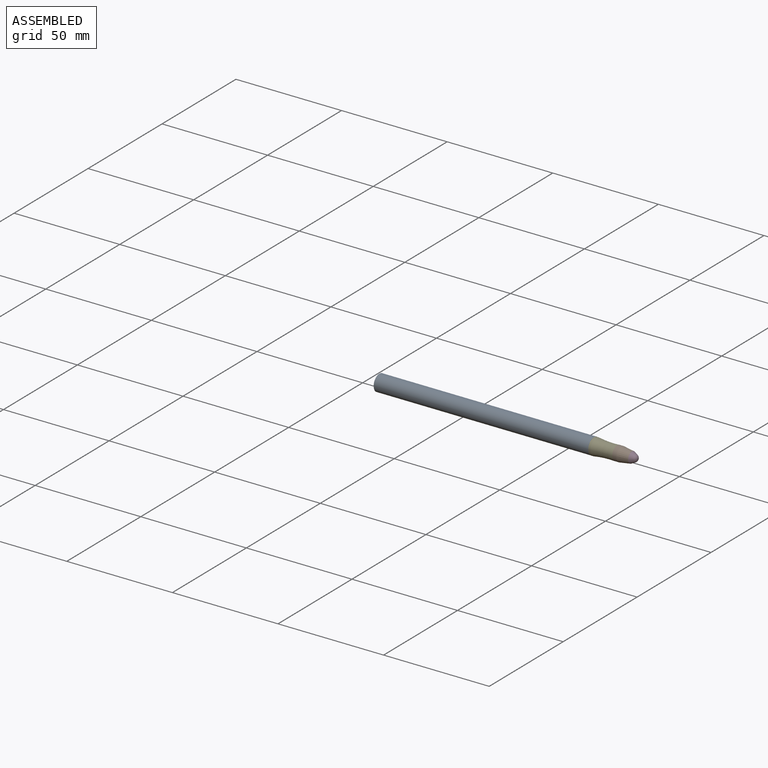
[diagram: assembled view]
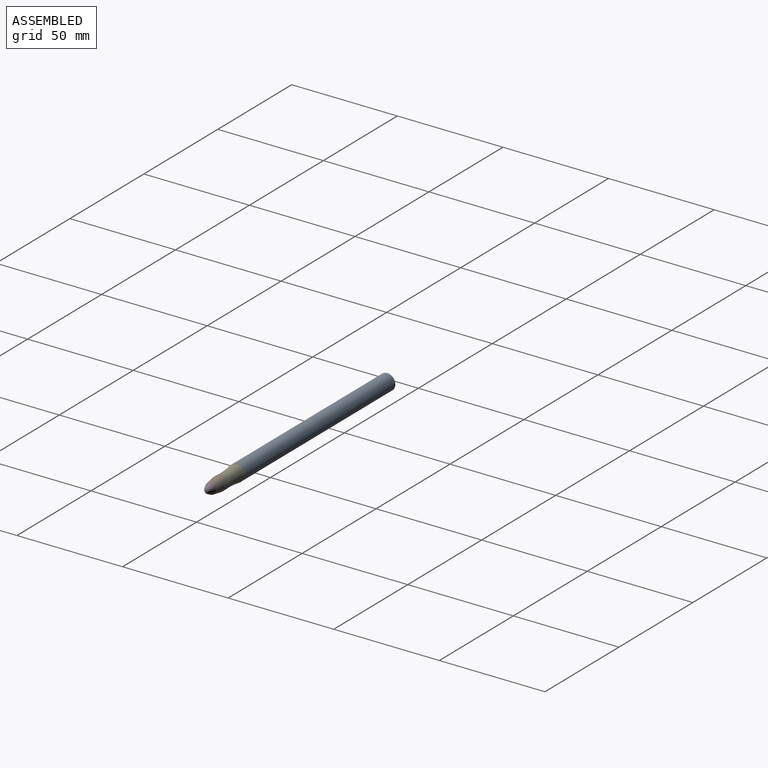
[diagram: assembled view, second angle]
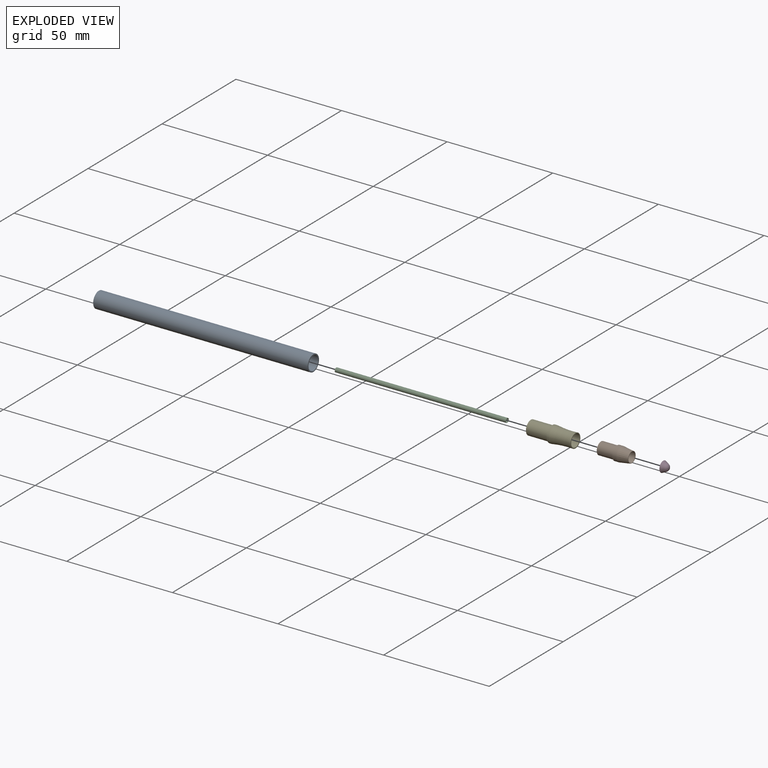
[diagram: exploded view]
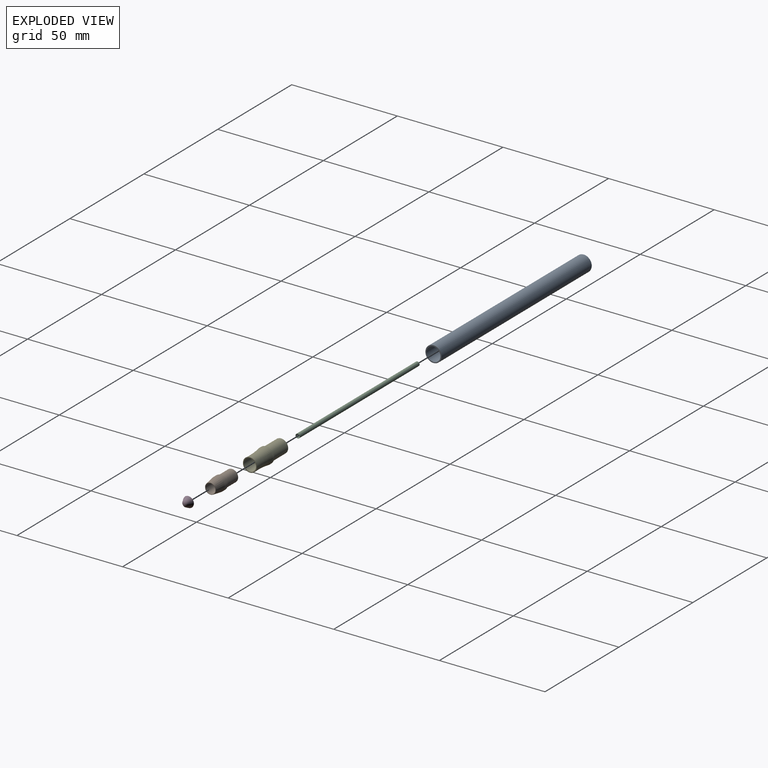
[diagram: exploded view, second angle]
ASSEMBLY  parts=5 mates=4
PART A: 5 faces, bbox 101.6x7.6x7.6 mm
  f0: plane 7.62x7.62mm, normal (-1,0,0), area 45.6mm2, adj f1
  f1: cylinder r=3.81mm len=101.6mm, axis (-1,0,0), area 2432.2mm2, adj f0,f2
  f2: plane 7.62x7.62mm, normal (1,0,0), area 11.4mm2, adj f1,f3
  f3: cylinder r=3.3mm len=100.46mm, axis (-1,0,0), area 2084.3mm2, adj f2,f4
  f4: plane 6.6x6.6mm, normal (1,0,0), area 34.3mm2, adj f3
PART B: 7 faces, bbox 14.6x6.6x6.6 mm
  f0: plane 5.79x5.79mm, normal (-1,0,0), area 9mm2, adj f5,f6
  f1: plane 5.08x5.08mm, normal (1,0,0), area 2.9mm2, adj f2,f6
  f2: cone r=2.54mm half-angle=8.7deg, axis (-1,0,0), area 92.8mm2, adj f1,f3
  f3: cylinder r=3.3mm len=6.6mm, axis (-1,0,0), area 41.5mm2, adj f2,f4
  f4: plane 6.6x6.6mm, normal (-1,0,0), area 7.9mm2, adj f3,f5
  f5: cylinder r=2.9mm len=7.62mm, axis (-1,0,0), area 138.6mm2, adj f0,f4
  f6: cylinder r=2.35mm len=14.62mm, axis (-1,0,0), area 216mm2, adj f0,f1
PART C: 4 faces, bbox 81x2x2 mm
  f0: plane 2.03x2.03mm, normal (-1,0,0), area 0.5mm2, adj f1,f3
  f1: cylinder r=1.02mm len=81mm, axis (-1,0,0), area 517.1mm2, adj f0,f2
  f2: plane 2.03x2.03mm, normal (1,0,0), area 0.5mm2, adj f1,f3
  f3: cylinder r=0.93mm len=81mm, axis (-1,0,0), area 473.1mm2, adj f0,f2
PART D: 3 faces, bbox 2.9x5.1x5.1 mm
  f0: cone r=2.54mm half-angle=25.9deg, axis (-1,0,-0.02), area 26.8mm2, adj f1,f2
  f1: cone r=2.54mm half-angle=88.7deg, axis (1,0,0.02), area 20.3mm2, adj f0
  f2: sphere r=1.84mm, area 11.9mm2, adj f0
PART E: 7 faces, bbox 63.9x35.2x35.2 mm
  f0: cylinder r=3.3mm len=10.16mm, axis (1,0,0), area 210.8mm2, adj f1,f5
  f1: plane 6.6x6.6mm, normal (-1,0,0), area 7.4mm2, adj f0,f6
  f2: plane 6.6x6.6mm, normal (1,0,0), area 7.4mm2, adj f3,f6
  f3: torus R=48.22mm, axis (1,0,0), area 212.5mm2, adj f2,f4
  f4: cylinder r=3.81mm len=7.62mm, axis (1,0,0), area 23.9mm2, adj f3,f5
  f5: plane 7.62x7.62mm, normal (-1,0,0), area 11.4mm2, adj f0,f4
  f6: cylinder r=2.92mm len=21.16mm, axis (-1,0,0), area 388.4mm2, adj f1,f2
PLACE A rot(axis=(-1,0,0),0deg) t=(-35.09,-6.13,20.02)mm
PLACE B rot(axis=(-1,0,0),0deg) t=(24.94,-6.13,26.49)mm
PLACE C rot(axis=(-1,0,0),0deg) t=(-2.9,-6.13,22.8)mm
PLACE D rot(axis=(0,1,0),1.3deg) t=(33.42,-6.13,23.54)mm
PLACE E rot(axis=(-1,0,0),0deg) t=(11.79,-6.13,27.09)mm
MATE slider B.f2 <-> E.f6  axis (-1,0,0) through (24.81,-6.13,23.83)mm
MATE fastened D.f0 <-> B.f6  axis (-1,0,0) through (31.81,-6.13,23.81)mm
MATE slider A.f3 <-> E.f0  axis (-1,0,0) through (13.81,-6.13,23.79)mm
MATE fastened C.f1 <-> D.f0  axis (-1,0,0) through (31.81,-6.13,23.81)mm
